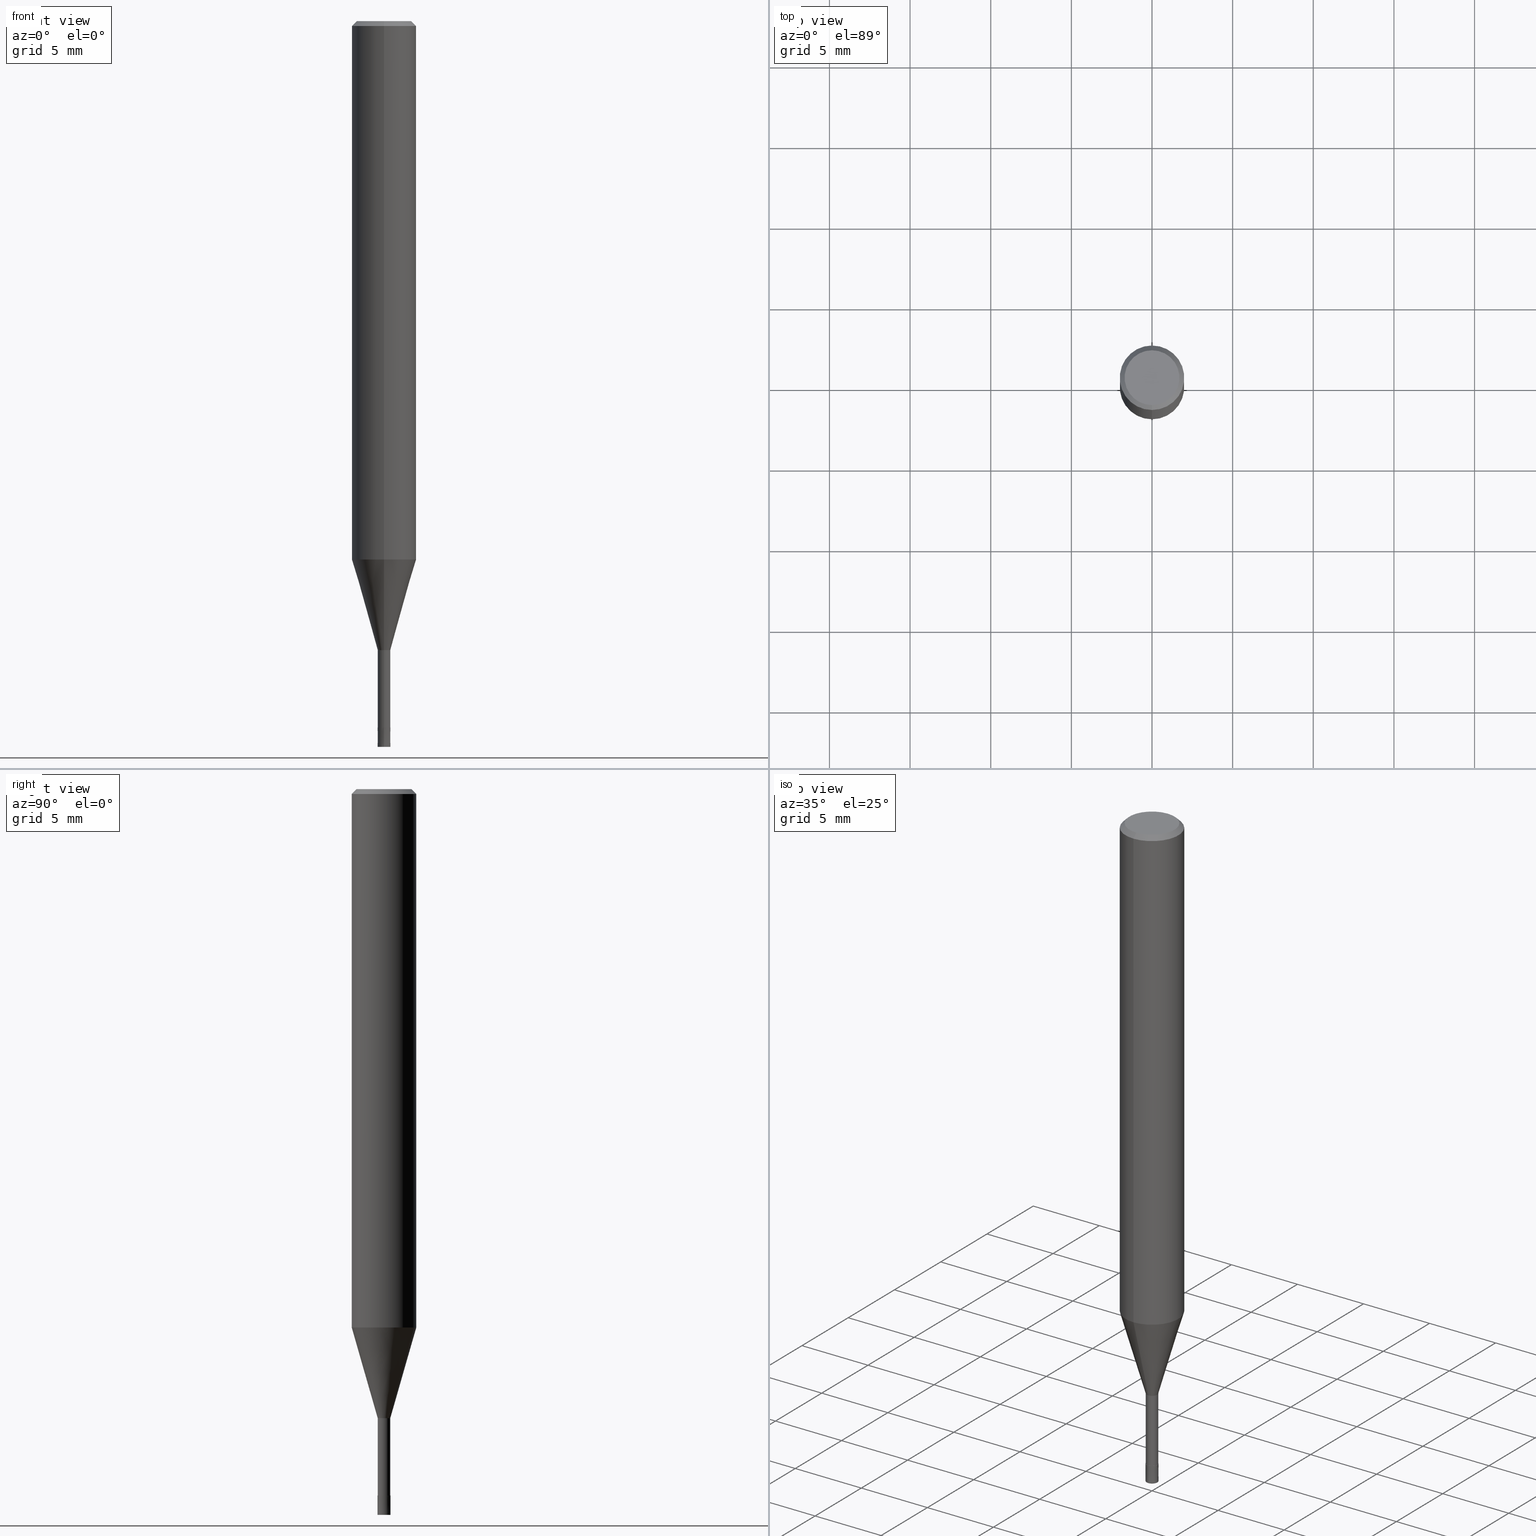
[diagram: canonical four-view strip — front | top / right | iso, engineering-drawing reading convention]
A machine part, canonical four-view strip (front | top / right | iso — engineering-drawing reading convention). The complete STEP part file that produces these views, byte-faithful:
ISO-10303-21;
HEADER;
FILE_DESCRIPTION(('no description'),'unknown implementation level');
FILE_NAME('HLS2008-060-Huellk.stp','  ',('CIMSOURCE GmbH'),('CADClick - KiM GmbH - www.kimweb.de'),'unknown preprocess','ACIS','unknown authorization');
FILE_SCHEMA(('automotive_design'));
ENDSEC;
DATA;
#1=MECHANICAL_DESIGN_GEOMETRIC_PRESENTATION_REPRESENTATION(' ',(#14,#15,#16,#17,#18,#19,#20,#21,#22,#23,#24,#25,#26,#27,#28,#29,#30,#31,#32,#33,#34,#35,#36,#37,#38,#39,#40,#41,#42,#43,#44,#45,#46,#47,#48,#49,#50,#51,#52,#53,#54,#55,#56,#57,#58,#59,#60,#61,#62,#63,#64,#65,#66,#67,#68,#69,#70,#71,#72),#10);
#2=PRODUCT_DEFINITION_CONTEXT('',#73,'design');
#3=APPLICATION_PROTOCOL_DEFINITION('INTERNATIONAL STANDARD','automotive_design',1994,#73);
#4=PRODUCT_CATEGORY_RELATIONSHIP('NONE','NONE',#74,#75);
#5=SHAPE_DEFINITION_REPRESENTATION(#76,#77);
#6=PRODUCT_DEFINITION_CONTEXT('',#78,'design');
#7=APPLICATION_PROTOCOL_DEFINITION('INTERNATIONAL STANDARD','automotive_design',1994,#78);
#8=PRODUCT_CATEGORY_RELATIONSHIP('NONE','NONE',#79,#80);
#9=SHAPE_DEFINITION_REPRESENTATION(#81,#82);
#10= (GEOMETRIC_REPRESENTATION_CONTEXT(3)GLOBAL_UNCERTAINTY_ASSIGNED_CONTEXT((#85))GLOBAL_UNIT_ASSIGNED_CONTEXT((#87,#88,#89))REPRESENTATION_CONTEXT('NONE','WORKSPACE'));
#14=STYLED_ITEM('',(#91),#92);
#15=STYLED_ITEM('',(#93),#94);
#16=STYLED_ITEM('',(#95),#96);
#17=STYLED_ITEM('',(#97),#98);
#18=STYLED_ITEM('',(#99),#100);
#19=STYLED_ITEM('',(#101),#102);
#20=STYLED_ITEM('',(#103),#104);
#21=STYLED_ITEM('',(#105),#106);
#22=STYLED_ITEM('',(#107),#108);
#23=STYLED_ITEM('',(#109),#110);
#24=STYLED_ITEM('',(#111),#112);
#25=STYLED_ITEM('',(#113),#114);
#26=STYLED_ITEM('',(#115),#116);
#27=STYLED_ITEM('',(#117),#118);
#28=STYLED_ITEM('',(#119),#120);
#29=STYLED_ITEM('',(#121),#122);
#30=STYLED_ITEM('',(#123),#124);
#31=STYLED_ITEM('',(#125),#126);
#32=STYLED_ITEM('',(#127),#128);
#33=STYLED_ITEM('',(#129),#130);
#34=STYLED_ITEM('',(#131),#132);
#35=STYLED_ITEM('',(#133),#134);
#36=STYLED_ITEM('',(#135),#136);
#37=STYLED_ITEM('',(#137),#138);
#38=STYLED_ITEM('',(#139),#140);
#39=STYLED_ITEM('',(#141),#142);
#40=STYLED_ITEM('',(#143),#144);
#41=STYLED_ITEM('',(#145),#146);
#42=STYLED_ITEM('',(#147),#148);
#43=STYLED_ITEM('',(#149),#150);
#44=STYLED_ITEM('',(#151),#152);
#45=STYLED_ITEM('',(#153),#154);
#46=STYLED_ITEM('',(#155),#156);
#47=STYLED_ITEM('',(#157),#158);
#48=STYLED_ITEM('',(#159),#160);
#49=STYLED_ITEM('',(#161),#162);
#50=STYLED_ITEM('',(#163),#164);
#51=STYLED_ITEM('',(#165),#166);
#52=STYLED_ITEM('',(#167),#168);
#53=STYLED_ITEM('',(#169),#170);
#54=STYLED_ITEM('',(#171),#172);
#55=STYLED_ITEM('',(#173),#174);
#56=STYLED_ITEM('',(#175),#176);
#57=STYLED_ITEM('',(#177),#178);
#58=STYLED_ITEM('',(#179),#180);
#59=STYLED_ITEM('',(#181),#182);
#60=STYLED_ITEM('',(#183),#184);
#61=STYLED_ITEM('',(#185),#186);
#62=STYLED_ITEM('',(#187),#188);
#63=STYLED_ITEM('',(#189),#190);
#64=STYLED_ITEM('',(#191),#192);
#65=STYLED_ITEM('',(#193),#194);
#66=STYLED_ITEM('',(#195),#196);
#67=STYLED_ITEM('',(#197),#198);
#68=STYLED_ITEM('',(#199),#200);
#69=STYLED_ITEM('',(#201),#202);
#70=STYLED_ITEM('',(#203),#204);
#71=STYLED_ITEM('',(#205),#206);
#72=STYLED_ITEM('',(#207),#208);
#73=APPLICATION_CONTEXT(' ');
#74=PRODUCT_CATEGORY('part','NONE');
#75=PRODUCT_RELATED_PRODUCT_CATEGORY('detail',' ',(#209));
#76=PRODUCT_DEFINITION_SHAPE('NONE','NONE',#210);
#77=ADVANCED_BREP_SHAPE_REPRESENTATION('1',(#118,#211),#10);
#78=APPLICATION_CONTEXT(' ');
#79=PRODUCT_CATEGORY('part','NONE');
#80=PRODUCT_RELATED_PRODUCT_CATEGORY('detail',' ',(#212));
#81=PRODUCT_DEFINITION_SHAPE('NONE','NONE',#213);
#82=ADVANCED_BREP_SHAPE_REPRESENTATION('2',(#132,#214),#10);
#85=UNCERTAINTY_MEASURE_WITH_UNIT(LENGTH_MEASURE(1.0E-006),#87,'','');
#87= (CONVERSION_BASED_UNIT('MILLIMETRE',#217)LENGTH_UNIT()NAMED_UNIT(#220));
#88= (NAMED_UNIT(#222)PLANE_ANGLE_UNIT()SI_UNIT($,.RADIAN.));
#89= (NAMED_UNIT(#222)SOLID_ANGLE_UNIT()SI_UNIT($,.STERADIAN.));
#91=PRESENTATION_STYLE_ASSIGNMENT((#228));
#92=EDGE_CURVE('',#180,#204,#229,.T.);
#93=PRESENTATION_STYLE_ASSIGNMENT((#230));
#94=ADVANCED_FACE('',(#231),#232,.T.);
#95=PRESENTATION_STYLE_ASSIGNMENT((#233));
#96=EDGE_CURVE('',#176,#168,#234,.T.);
#97=PRESENTATION_STYLE_ASSIGNMENT((#235));
#98=EDGE_CURVE('',#114,#162,#236,.T.);
#99=PRESENTATION_STYLE_ASSIGNMENT((#237));
#100=EDGE_CURVE('',#170,#134,#238,.T.);
#101=PRESENTATION_STYLE_ASSIGNMENT((#239));
#102=VERTEX_POINT('',#240);
#103=PRESENTATION_STYLE_ASSIGNMENT((#241));
#104=ADVANCED_FACE('',(#242),#243,.T.);
#105=PRESENTATION_STYLE_ASSIGNMENT((#244));
#106=VERTEX_POINT('',#245);
#107=PRESENTATION_STYLE_ASSIGNMENT((#246));
#108=EDGE_CURVE('',#180,#134,#247,.T.);
#109=PRESENTATION_STYLE_ASSIGNMENT((#248));
#110=ADVANCED_FACE('',(#249),#250,.T.);
#111=PRESENTATION_STYLE_ASSIGNMENT((#251));
#112=EDGE_CURVE('',#162,#114,#252,.T.);
#113=PRESENTATION_STYLE_ASSIGNMENT((#253));
#114=VERTEX_POINT('',#254);
#115=PRESENTATION_STYLE_ASSIGNMENT((#255));
#116=EDGE_CURVE('',#176,#206,#256,.T.);
#117=PRESENTATION_STYLE_ASSIGNMENT((#257));
#118=MANIFOLD_SOLID_BREP('1',#258);
#119=PRESENTATION_STYLE_ASSIGNMENT((#259));
#120=EDGE_CURVE('',#150,#156,#260,.T.);
#121=PRESENTATION_STYLE_ASSIGNMENT((#261));
#122=ADVANCED_FACE('',(#262),#263,.T.);
#123=PRESENTATION_STYLE_ASSIGNMENT((#264));
#124=EDGE_CURVE('',#156,#150,#265,.T.);
#125=PRESENTATION_STYLE_ASSIGNMENT((#266));
#126=VERTEX_POINT('',#267);
#127=PRESENTATION_STYLE_ASSIGNMENT((#268));
#128=EDGE_CURVE('',#106,#206,#269,.T.);
#129=PRESENTATION_STYLE_ASSIGNMENT((#270));
#130=EDGE_CURVE('',#138,#106,#271,.T.);
#131=PRESENTATION_STYLE_ASSIGNMENT((#272));
#132=MANIFOLD_SOLID_BREP('2',#273);
#133=PRESENTATION_STYLE_ASSIGNMENT((#274));
#134=VERTEX_POINT('',#275);
#135=PRESENTATION_STYLE_ASSIGNMENT((#276));
#136=ADVANCED_FACE('',(#277),#278,.T.);
#137=PRESENTATION_STYLE_ASSIGNMENT((#279));
#138=VERTEX_POINT('',#280);
#139=PRESENTATION_STYLE_ASSIGNMENT((#281));
#140=EDGE_CURVE('',#206,#176,#282,.T.);
#141=PRESENTATION_STYLE_ASSIGNMENT((#283));
#142=EDGE_CURVE('',#138,#102,#284,.T.);
#143=PRESENTATION_STYLE_ASSIGNMENT((#285));
#144=ADVANCED_FACE('',(#286),#287,.T.);
#145=PRESENTATION_STYLE_ASSIGNMENT((#288));
#146=ADVANCED_FACE('',(#289),#290,.T.);
#147=PRESENTATION_STYLE_ASSIGNMENT((#291));
#148=EDGE_CURVE('',#170,#204,#292,.T.);
#149=PRESENTATION_STYLE_ASSIGNMENT((#293));
#150=VERTEX_POINT('',#294);
#151=PRESENTATION_STYLE_ASSIGNMENT((#295));
#152=EDGE_CURVE('',#204,#180,#296,.T.);
#153=PRESENTATION_STYLE_ASSIGNMENT((#297));
#154=EDGE_CURVE('',#168,#102,#298,.T.);
#155=PRESENTATION_STYLE_ASSIGNMENT((#299));
#156=VERTEX_POINT('',#300);
#157=PRESENTATION_STYLE_ASSIGNMENT((#301));
#158=EDGE_CURVE('',#198,#126,#302,.T.);
#159=PRESENTATION_STYLE_ASSIGNMENT((#303));
#160=EDGE_CURVE('',#106,#168,#304,.T.);
#161=PRESENTATION_STYLE_ASSIGNMENT((#305));
#162=VERTEX_POINT('',#306);
#163=PRESENTATION_STYLE_ASSIGNMENT((#307));
#164=EDGE_CURVE('',#150,#198,#308,.T.);
#165=PRESENTATION_STYLE_ASSIGNMENT((#309));
#166=ADVANCED_FACE('',(#310),#311,.T.);
#167=PRESENTATION_STYLE_ASSIGNMENT((#312));
#168=VERTEX_POINT('',#313);
#169=PRESENTATION_STYLE_ASSIGNMENT((#314));
#170=VERTEX_POINT('',#315);
#171=PRESENTATION_STYLE_ASSIGNMENT((#316));
#172=EDGE_CURVE('',#126,#198,#317,.T.);
#173=PRESENTATION_STYLE_ASSIGNMENT((#318));
#174=ADVANCED_FACE('',(#319),#320,.T.);
#175=PRESENTATION_STYLE_ASSIGNMENT((#321));
#176=VERTEX_POINT('',#322);
#177=PRESENTATION_STYLE_ASSIGNMENT((#323));
#178=EDGE_CURVE('',#198,#162,#324,.T.);
#179=PRESENTATION_STYLE_ASSIGNMENT((#325));
#180=VERTEX_POINT('',#326);
#181=PRESENTATION_STYLE_ASSIGNMENT((#327));
#182=EDGE_CURVE('',#126,#156,#328,.T.);
#183=PRESENTATION_STYLE_ASSIGNMENT((#329));
#184=ADVANCED_FACE('',(#330),#331,.T.);
#185=PRESENTATION_STYLE_ASSIGNMENT((#332));
#186=ADVANCED_FACE('',(#333,#334),#335,.T.);
#187=PRESENTATION_STYLE_ASSIGNMENT((#336));
#188=ADVANCED_FACE('',(#337),#338,.T.);
#189=PRESENTATION_STYLE_ASSIGNMENT((#339));
#190=ADVANCED_FACE('',(#340),#341,.T.);
#191=PRESENTATION_STYLE_ASSIGNMENT((#342));
#192=ADVANCED_FACE('',(#343),#344,.T.);
#193=PRESENTATION_STYLE_ASSIGNMENT((#345));
#194=ADVANCED_FACE('',(#346),#347,.T.);
#195=PRESENTATION_STYLE_ASSIGNMENT((#348));
#196=EDGE_CURVE('',#102,#138,#349,.T.);
#197=PRESENTATION_STYLE_ASSIGNMENT((#350));
#198=VERTEX_POINT('',#351);
#199=PRESENTATION_STYLE_ASSIGNMENT((#352));
#200=EDGE_CURVE('',#134,#170,#353,.T.);
#201=PRESENTATION_STYLE_ASSIGNMENT((#354));
#202=EDGE_CURVE('',#114,#126,#355,.T.);
#203=PRESENTATION_STYLE_ASSIGNMENT((#356));
#204=VERTEX_POINT('',#357);
#205=PRESENTATION_STYLE_ASSIGNMENT((#358));
#206=VERTEX_POINT('',#359);
#207=PRESENTATION_STYLE_ASSIGNMENT((#360));
#208=EDGE_CURVE('',#168,#106,#361,.T.);
#209=PRODUCT('1','1','PART-1-DESC',(#362));
#210=PRODUCT_DEFINITION('NONE','NONE',#363,#2);
#211=AXIS2_PLACEMENT_3D('',#364,#365,#366);
#212=PRODUCT('2','2','PART-2-DESC',(#367));
#213=PRODUCT_DEFINITION('NONE','NONE',#368,#6);
#214=AXIS2_PLACEMENT_3D('',#369,#370,#371);
#217=LENGTH_MEASURE_WITH_UNIT(LENGTH_MEASURE(1.0),#372);
#220=DIMENSIONAL_EXPONENTS(1.0,0.0,0.0,0.0,0.0,0.0,0.0);
#222=DIMENSIONAL_EXPONENTS(0.0,0.0,0.0,0.0,0.0,0.0,0.0);
#228=CURVE_STYLE('',#373,POSITIVE_LENGTH_MEASURE(1.0E-006),#374);
#229=CIRCLE('',#375,0.3999);
#230=SURFACE_STYLE_USAGE(.BOTH.,#376);
#231=FACE_OUTER_BOUND('',#377,.T.);
#232=PLANE('',#378);
#233=CURVE_STYLE('',#379,POSITIVE_LENGTH_MEASURE(1.0E-006),#380);
#234=LINE('',#381,#382);
#235=CURVE_STYLE('',#383,POSITIVE_LENGTH_MEASURE(1.0E-006),#384);
#236=CIRCLE('',#385,1.7);
#237=CURVE_STYLE('',#386,POSITIVE_LENGTH_MEASURE(1.0E-006),#387);
#238=CIRCLE('',#388,0.4);
#239=POINT_STYLE(' ',#389,POSITIVE_LENGTH_MEASURE(1.0E-006),#390);
#240=CARTESIAN_POINT('',(0.0,0.38995,-43.8));
#241=SURFACE_STYLE_USAGE(.BOTH.,#391);
#242=FACE_OUTER_BOUND('',#392,.T.);
#243=PLANE('',#393);
#244=POINT_STYLE(' ',#394,POSITIVE_LENGTH_MEASURE(1.0E-006),#395);
#245=CARTESIAN_POINT('',(4.77535247673036E-017,-0.38995,-39.0));
#246=CURVE_STYLE('',#396,POSITIVE_LENGTH_MEASURE(1.0E-006),#397);
#247=LINE('',#398,#399);
#248=SURFACE_STYLE_USAGE(.BOTH.,#400);
#249=FACE_OUTER_BOUND('',#401,.T.);
#250=CONICAL_SURFACE('',#402,1.19495,0.279240281890545);
#251=CURVE_STYLE('',#403,POSITIVE_LENGTH_MEASURE(1.0E-006),#404);
#252=CIRCLE('',#405,1.7);
#253=POINT_STYLE(' ',#406,POSITIVE_LENGTH_MEASURE(1.0E-006),#407);
#254=CARTESIAN_POINT('',(0.0,1.7,0.0));
#255=CURVE_STYLE('',#408,POSITIVE_LENGTH_MEASURE(1.0E-006),#409);
#256=CIRCLE('',#410,1.99995);
#257=SURFACE_STYLE_USAGE(.BOTH.,#411);
#258=CLOSED_SHELL('',(#188,#110,#136,#146,#186,#104,#190,#192,#174,#166,#194));
#259=CURVE_STYLE('',#412,POSITIVE_LENGTH_MEASURE(1.0E-006),#413);
#260=CIRCLE('',#414,2.0);
#261=SURFACE_STYLE_USAGE(.BOTH.,#415);
#262=FACE_OUTER_BOUND('',#416,.T.);
#263=CONICAL_SURFACE('',#417,0.39995,8.33333331404692E-005);
#264=CURVE_STYLE('',#418,POSITIVE_LENGTH_MEASURE(1.0E-006),#419);
#265=CIRCLE('',#420,2.0);
#266=POINT_STYLE(' ',#421,POSITIVE_LENGTH_MEASURE(1.0E-006),#422);
#267=CARTESIAN_POINT('',(0.0,2.0,-0.299999999999997));
#268=CURVE_STYLE('',#423,POSITIVE_LENGTH_MEASURE(1.0E-006),#424);
#269=LINE('',#425,#426);
#270=CURVE_STYLE('',#427,POSITIVE_LENGTH_MEASURE(1.0E-006),#428);
#271=LINE('',#429,#430);
#272=SURFACE_STYLE_USAGE(.BOTH.,#431);
#273=CLOSED_SHELL('',(#144,#94,#122,#184));
#274=POINT_STYLE(' ',#432,POSITIVE_LENGTH_MEASURE(1.0E-006),#433);
#275=CARTESIAN_POINT('',(0.0,0.4,-45.0));
#276=SURFACE_STYLE_USAGE(.BOTH.,#434);
#277=FACE_OUTER_BOUND('',#435,.T.);
#278=CYLINDRICAL_SURFACE('',#436,2.0);
#279=POINT_STYLE(' ',#437,POSITIVE_LENGTH_MEASURE(1.0E-006),#438);
#280=CARTESIAN_POINT('',(4.77535247673036E-017,-0.38995,-43.8));
#281=CURVE_STYLE('',#439,POSITIVE_LENGTH_MEASURE(1.0E-006),#440);
#282=CIRCLE('',#441,1.99995);
#283=CURVE_STYLE('',#442,POSITIVE_LENGTH_MEASURE(1.0E-006),#443);
#284=CIRCLE('',#444,0.38995);
#285=SURFACE_STYLE_USAGE(.BOTH.,#445);
#286=FACE_OUTER_BOUND('',#446,.T.);
#287=CONICAL_SURFACE('',#447,0.39995,8.33333331404692E-005);
#288=SURFACE_STYLE_USAGE(.BOTH.,#448);
#289=FACE_OUTER_BOUND('',#449,.T.);
#290=CONICAL_SURFACE('',#450,1.85,0.785398163397453);
#291=CURVE_STYLE('',#451,POSITIVE_LENGTH_MEASURE(1.0E-006),#452);
#292=LINE('',#453,#454);
#293=POINT_STYLE(' ',#455,POSITIVE_LENGTH_MEASURE(1.0E-006),#456);
#294=CARTESIAN_POINT('',(2.44921270764475E-016,-2.0,-33.385));
#295=CURVE_STYLE('',#457,POSITIVE_LENGTH_MEASURE(1.0E-006),#458);
#296=CIRCLE('',#459,0.3999);
#297=CURVE_STYLE('',#460,POSITIVE_LENGTH_MEASURE(1.0E-006),#461);
#298=LINE('',#462,#463);
#299=POINT_STYLE(' ',#464,POSITIVE_LENGTH_MEASURE(1.0E-006),#465);
#300=CARTESIAN_POINT('',(0.0,2.0,-33.385));
#301=CURVE_STYLE('',#466,POSITIVE_LENGTH_MEASURE(1.0E-006),#467);
#302=CIRCLE('',#468,2.0);
#303=CURVE_STYLE('',#469,POSITIVE_LENGTH_MEASURE(1.0E-006),#470);
#304=CIRCLE('',#471,0.38995);
#305=POINT_STYLE(' ',#472,POSITIVE_LENGTH_MEASURE(1.0E-006),#473);
#306=CARTESIAN_POINT('',(2.08183080149804E-016,-1.7,0.0));
#307=CURVE_STYLE('',#474,POSITIVE_LENGTH_MEASURE(1.0E-006),#475);
#308=LINE('',#476,#477);
#309=SURFACE_STYLE_USAGE(.BOTH.,#478);
#310=FACE_OUTER_BOUND('',#479,.T.);
#311=CYLINDRICAL_SURFACE('',#480,0.38995);
#312=POINT_STYLE(' ',#481,POSITIVE_LENGTH_MEASURE(1.0E-006),#482);
#313=CARTESIAN_POINT('',(0.0,0.38995,-39.0));
#314=POINT_STYLE(' ',#483,POSITIVE_LENGTH_MEASURE(1.0E-006),#484);
#315=CARTESIAN_POINT('',(4.89842541528951E-017,-0.4,-45.0));
#316=CURVE_STYLE('',#485,POSITIVE_LENGTH_MEASURE(1.0E-006),#486);
#317=CIRCLE('',#487,2.0);
#318=SURFACE_STYLE_USAGE(.BOTH.,#488);
#319=FACE_OUTER_BOUND('',#489,.T.);
#320=CONICAL_SURFACE('',#490,1.19495,0.279240281890545);
#321=POINT_STYLE(' ',#491,POSITIVE_LENGTH_MEASURE(1.0E-006),#492);
#322=CARTESIAN_POINT('',(0.0,1.99995,-33.385));
#323=CURVE_STYLE('',#493,POSITIVE_LENGTH_MEASURE(1.0E-006),#494);
#324=LINE('',#495,#496);
#325=POINT_STYLE(' ',#497,POSITIVE_LENGTH_MEASURE(1.0E-006),#498);
#326=CARTESIAN_POINT('',(0.0,0.3999,-43.8));
#327=CURVE_STYLE('',#499,POSITIVE_LENGTH_MEASURE(1.0E-006),#500);
#328=LINE('',#501,#502);
#329=SURFACE_STYLE_USAGE(.BOTH.,#503);
#330=FACE_OUTER_BOUND('',#504,.T.);
#331=PLANE('',#505);
#332=SURFACE_STYLE_USAGE(.BOTH.,#506);
#333=FACE_OUTER_BOUND('',#507,.T.);
#334=FACE_BOUND('',#508,.T.);
#335=PLANE('',#509);
#336=SURFACE_STYLE_USAGE(.BOTH.,#510);
#337=FACE_OUTER_BOUND('',#511,.T.);
#338=CYLINDRICAL_SURFACE('',#512,0.38995);
#339=SURFACE_STYLE_USAGE(.BOTH.,#513);
#340=FACE_OUTER_BOUND('',#514,.T.);
#341=CONICAL_SURFACE('',#515,1.85,0.785398163397453);
#342=SURFACE_STYLE_USAGE(.BOTH.,#516);
#343=FACE_OUTER_BOUND('',#517,.T.);
#344=CYLINDRICAL_SURFACE('',#518,2.0);
#345=SURFACE_STYLE_USAGE(.BOTH.,#519);
#346=FACE_OUTER_BOUND('',#520,.T.);
#347=PLANE('',#521);
#348=CURVE_STYLE('',#522,POSITIVE_LENGTH_MEASURE(1.0E-006),#523);
#349=CIRCLE('',#524,0.38995);
#350=POINT_STYLE(' ',#525,POSITIVE_LENGTH_MEASURE(1.0E-006),#526);
#351=CARTESIAN_POINT('',(2.44921270764475E-016,-2.0,-0.299999999999997));
#352=CURVE_STYLE('',#527,POSITIVE_LENGTH_MEASURE(1.0E-006),#528);
#353=CIRCLE('',#529,0.4);
#354=CURVE_STYLE('',#530,POSITIVE_LENGTH_MEASURE(1.0E-006),#531);
#355=LINE('',#532,#533);
#356=POINT_STYLE(' ',#534,POSITIVE_LENGTH_MEASURE(1.0E-006),#535);
#357=CARTESIAN_POINT('',(4.89720080893569E-017,-0.3999,-43.8));
#358=POINT_STYLE(' ',#536,POSITIVE_LENGTH_MEASURE(1.0E-006),#537);
#359=CARTESIAN_POINT('',(2.44915147732706E-016,-1.99995,-33.385));
#360=CURVE_STYLE('',#538,POSITIVE_LENGTH_MEASURE(1.0E-006),#539);
#361=CIRCLE('',#540,0.38995);
#362=PRODUCT_CONTEXT('',#73,'mechanical');
#363=PRODUCT_DEFINITION_FORMATION_WITH_SPECIFIED_SOURCE(' ','NONE',#209,.NOT_KNOWN.);
#364=CARTESIAN_POINT('',(0.0,0.0,0.0));
#365=DIRECTION('',(0.0,0.0,1.0));
#366=DIRECTION('',(1.0,0.0,0.0));
#367=PRODUCT_CONTEXT('',#78,'mechanical');
#368=PRODUCT_DEFINITION_FORMATION_WITH_SPECIFIED_SOURCE(' ','NONE',#212,.NOT_KNOWN.);
#369=CARTESIAN_POINT('',(0.0,0.0,0.0));
#370=DIRECTION('',(0.0,0.0,1.0));
#371=DIRECTION('',(1.0,0.0,0.0));
#372= (NAMED_UNIT(#220)LENGTH_UNIT()SI_UNIT(.MILLI.,.METRE.));
#373=DRAUGHTING_PRE_DEFINED_CURVE_FONT('continuous');
#374=COLOUR_RGB('',0.800000011920929,0.800000011920929,0.800000011920929);
#375=AXIS2_PLACEMENT_3D('',#542,#543,#544);
#376=SURFACE_SIDE_STYLE('',(#545));
#377=EDGE_LOOP('',(#546,#547));
#378=AXIS2_PLACEMENT_3D('',#548,#549,#550);
#379=DRAUGHTING_PRE_DEFINED_CURVE_FONT('continuous');
#380=COLOUR_RGB('',0.498039215803146,0.498039215803146,0.498039215803146);
#381=CARTESIAN_POINT('',(-1.46334336250005E-016,1.19495,-36.1925));
#382=VECTOR('',#551,1.0);
#383=DRAUGHTING_PRE_DEFINED_CURVE_FONT('continuous');
#384=COLOUR_RGB('',0.498039215803146,0.498039215803146,0.498039215803146);
#385=AXIS2_PLACEMENT_3D('',#552,#553,#554);
#386=DRAUGHTING_PRE_DEFINED_CURVE_FONT('continuous');
#387=COLOUR_RGB('',0.800000011920929,0.800000011920929,0.800000011920929);
#388=AXIS2_PLACEMENT_3D('',#555,#556,#557);
#389=PRE_DEFINED_MARKER('');
#390=COLOUR_RGB('',0.498039215803146,0.498039215803146,0.498039215803146);
#391=SURFACE_SIDE_STYLE('',(#558));
#392=EDGE_LOOP('',(#559,#560));
#393=AXIS2_PLACEMENT_3D('',#561,#562,#563);
#394=PRE_DEFINED_MARKER('');
#395=COLOUR_RGB('',0.498039215803146,0.498039215803146,0.498039215803146);
#396=DRAUGHTING_PRE_DEFINED_CURVE_FONT('continuous');
#397=COLOUR_RGB('',0.800000011920929,0.800000011920929,0.800000011920929);
#398=CARTESIAN_POINT('',(-4.8978131121126E-017,0.39995,-44.4));
#399=VECTOR('',#564,1.0);
#400=SURFACE_SIDE_STYLE('',(#565));
#401=EDGE_LOOP('',(#566,#567,#568,#569));
#402=AXIS2_PLACEMENT_3D('',#570,#571,#572);
#403=DRAUGHTING_PRE_DEFINED_CURVE_FONT('continuous');
#404=COLOUR_RGB('',0.498039215803146,0.498039215803146,0.498039215803146);
#405=AXIS2_PLACEMENT_3D('',#573,#574,#575);
#406=PRE_DEFINED_MARKER('');
#407=COLOUR_RGB('',0.498039215803146,0.498039215803146,0.498039215803146);
#408=DRAUGHTING_PRE_DEFINED_CURVE_FONT('continuous');
#409=COLOUR_RGB('',0.498039215803146,0.498039215803146,0.498039215803146);
#410=AXIS2_PLACEMENT_3D('',#576,#577,#578);
#411=SURFACE_SIDE_STYLE('',(#579));
#412=DRAUGHTING_PRE_DEFINED_CURVE_FONT('continuous');
#413=COLOUR_RGB('',0.498039215803146,0.498039215803146,0.498039215803146);
#414=AXIS2_PLACEMENT_3D('',#580,#581,#582);
#415=SURFACE_SIDE_STYLE('',(#583));
#416=EDGE_LOOP('',(#584,#585,#586,#587));
#417=AXIS2_PLACEMENT_3D('',#588,#589,#590);
#418=DRAUGHTING_PRE_DEFINED_CURVE_FONT('continuous');
#419=COLOUR_RGB('',0.498039215803146,0.498039215803146,0.498039215803146);
#420=AXIS2_PLACEMENT_3D('',#591,#592,#593);
#421=PRE_DEFINED_MARKER('');
#422=COLOUR_RGB('',0.498039215803146,0.498039215803146,0.498039215803146);
#423=DRAUGHTING_PRE_DEFINED_CURVE_FONT('continuous');
#424=COLOUR_RGB('',0.498039215803146,0.498039215803146,0.498039215803146);
#425=CARTESIAN_POINT('',(1.46334336250005E-016,-1.19495,-36.1925));
#426=VECTOR('',#594,1.0);
#427=DRAUGHTING_PRE_DEFINED_CURVE_FONT('continuous');
#428=COLOUR_RGB('',0.498039215803146,0.498039215803146,0.498039215803146);
#429=CARTESIAN_POINT('',(4.77535247673036E-017,-0.38995,-41.4));
#430=VECTOR('',#595,1.0);
#431=SURFACE_SIDE_STYLE('',(#596));
#432=PRE_DEFINED_MARKER('');
#433=COLOUR_RGB('',0.800000011920929,0.800000011920929,0.800000011920929);
#434=SURFACE_SIDE_STYLE('',(#597));
#435=EDGE_LOOP('',(#598,#599,#600,#601));
#436=AXIS2_PLACEMENT_3D('',#602,#603,#604);
#437=PRE_DEFINED_MARKER('');
#438=COLOUR_RGB('',0.498039215803146,0.498039215803146,0.498039215803146);
#439=DRAUGHTING_PRE_DEFINED_CURVE_FONT('continuous');
#440=COLOUR_RGB('',0.498039215803146,0.498039215803146,0.498039215803146);
#441=AXIS2_PLACEMENT_3D('',#605,#606,#607);
#442=DRAUGHTING_PRE_DEFINED_CURVE_FONT('continuous');
#443=COLOUR_RGB('',0.498039215803146,0.498039215803146,0.498039215803146);
#444=AXIS2_PLACEMENT_3D('',#608,#609,#610);
#445=SURFACE_SIDE_STYLE('',(#611));
#446=EDGE_LOOP('',(#612,#613,#614,#615));
#447=AXIS2_PLACEMENT_3D('',#616,#617,#618);
#448=SURFACE_SIDE_STYLE('',(#619));
#449=EDGE_LOOP('',(#620,#621,#622,#623));
#450=AXIS2_PLACEMENT_3D('',#624,#625,#626);
#451=DRAUGHTING_PRE_DEFINED_CURVE_FONT('continuous');
#452=COLOUR_RGB('',0.800000011920929,0.800000011920929,0.800000011920929);
#453=CARTESIAN_POINT('',(4.8978131121126E-017,-0.39995,-44.4));
#454=VECTOR('',#627,1.0);
#455=PRE_DEFINED_MARKER('');
#456=COLOUR_RGB('',0.498039215803146,0.498039215803146,0.498039215803146);
#457=DRAUGHTING_PRE_DEFINED_CURVE_FONT('continuous');
#458=COLOUR_RGB('',0.800000011920929,0.800000011920929,0.800000011920929);
#459=AXIS2_PLACEMENT_3D('',#628,#629,#630);
#460=DRAUGHTING_PRE_DEFINED_CURVE_FONT('continuous');
#461=COLOUR_RGB('',0.498039215803146,0.498039215803146,0.498039215803146);
#462=CARTESIAN_POINT('',(-4.77535247673036E-017,0.38995,-41.4));
#463=VECTOR('',#631,1.0);
#464=PRE_DEFINED_MARKER('');
#465=COLOUR_RGB('',0.498039215803146,0.498039215803146,0.498039215803146);
#466=DRAUGHTING_PRE_DEFINED_CURVE_FONT('continuous');
#467=COLOUR_RGB('',0.498039215803146,0.498039215803146,0.498039215803146);
#468=AXIS2_PLACEMENT_3D('',#632,#633,#634);
#469=DRAUGHTING_PRE_DEFINED_CURVE_FONT('continuous');
#470=COLOUR_RGB('',0.498039215803146,0.498039215803146,0.498039215803146);
#471=AXIS2_PLACEMENT_3D('',#635,#636,#637);
#472=PRE_DEFINED_MARKER('');
#473=COLOUR_RGB('',0.498039215803146,0.498039215803146,0.498039215803146);
#474=DRAUGHTING_PRE_DEFINED_CURVE_FONT('continuous');
#475=COLOUR_RGB('',0.498039215803146,0.498039215803146,0.498039215803146);
#476=CARTESIAN_POINT('',(2.44921270764475E-016,-2.0,-16.8425));
#477=VECTOR('',#638,1.0);
#478=SURFACE_SIDE_STYLE('',(#639));
#479=EDGE_LOOP('',(#640,#641,#642,#643));
#480=AXIS2_PLACEMENT_3D('',#644,#645,#646);
#481=PRE_DEFINED_MARKER('');
#482=COLOUR_RGB('',0.498039215803146,0.498039215803146,0.498039215803146);
#483=PRE_DEFINED_MARKER('');
#484=COLOUR_RGB('',0.800000011920929,0.800000011920929,0.800000011920929);
#485=DRAUGHTING_PRE_DEFINED_CURVE_FONT('continuous');
#486=COLOUR_RGB('',0.498039215803146,0.498039215803146,0.498039215803146);
#487=AXIS2_PLACEMENT_3D('',#647,#648,#649);
#488=SURFACE_SIDE_STYLE('',(#650));
#489=EDGE_LOOP('',(#651,#652,#653,#654));
#490=AXIS2_PLACEMENT_3D('',#655,#656,#657);
#491=PRE_DEFINED_MARKER('');
#492=COLOUR_RGB('',0.498039215803146,0.498039215803146,0.498039215803146);
#493=DRAUGHTING_PRE_DEFINED_CURVE_FONT('continuous');
#494=COLOUR_RGB('',0.498039215803146,0.498039215803146,0.498039215803146);
#495=CARTESIAN_POINT('',(2.2655217545714E-016,-1.85,-0.149999999999999));
#496=VECTOR('',#658,1.0);
#497=PRE_DEFINED_MARKER('');
#498=COLOUR_RGB('',0.800000011920929,0.800000011920929,0.800000011920929);
#499=DRAUGHTING_PRE_DEFINED_CURVE_FONT('continuous');
#500=COLOUR_RGB('',0.498039215803146,0.498039215803146,0.498039215803146);
#501=CARTESIAN_POINT('',(-2.44921270764475E-016,2.0,-16.8425));
#502=VECTOR('',#659,1.0);
#503=SURFACE_SIDE_STYLE('',(#660));
#504=EDGE_LOOP('',(#661,#662));
#505=AXIS2_PLACEMENT_3D('',#663,#664,#665);
#506=SURFACE_SIDE_STYLE('',(#666));
#507=EDGE_LOOP('',(#667,#668));
#508=EDGE_LOOP('',(#669,#670));
#509=AXIS2_PLACEMENT_3D('',#671,#672,#673);
#510=SURFACE_SIDE_STYLE('',(#674));
#511=EDGE_LOOP('',(#675,#676,#677,#678));
#512=AXIS2_PLACEMENT_3D('',#679,#680,#681);
#513=SURFACE_SIDE_STYLE('',(#682));
#514=EDGE_LOOP('',(#683,#684,#685,#686));
#515=AXIS2_PLACEMENT_3D('',#687,#688,#689);
#516=SURFACE_SIDE_STYLE('',(#690));
#517=EDGE_LOOP('',(#691,#692,#693,#694));
#518=AXIS2_PLACEMENT_3D('',#695,#696,#697);
#519=SURFACE_SIDE_STYLE('',(#698));
#520=EDGE_LOOP('',(#699,#700));
#521=AXIS2_PLACEMENT_3D('',#701,#702,#703);
#522=DRAUGHTING_PRE_DEFINED_CURVE_FONT('continuous');
#523=COLOUR_RGB('',0.498039215803146,0.498039215803146,0.498039215803146);
#524=AXIS2_PLACEMENT_3D('',#704,#705,#706);
#525=PRE_DEFINED_MARKER('');
#526=COLOUR_RGB('',0.498039215803146,0.498039215803146,0.498039215803146);
#527=DRAUGHTING_PRE_DEFINED_CURVE_FONT('continuous');
#528=COLOUR_RGB('',0.800000011920929,0.800000011920929,0.800000011920929);
#529=AXIS2_PLACEMENT_3D('',#707,#708,#709);
#530=DRAUGHTING_PRE_DEFINED_CURVE_FONT('continuous');
#531=COLOUR_RGB('',0.498039215803146,0.498039215803146,0.498039215803146);
#532=CARTESIAN_POINT('',(-2.2655217545714E-016,1.85,-0.149999999999999));
#533=VECTOR('',#710,1.0);
#534=PRE_DEFINED_MARKER('');
#535=COLOUR_RGB('',0.800000011920929,0.800000011920929,0.800000011920929);
#536=PRE_DEFINED_MARKER('');
#537=COLOUR_RGB('',0.498039215803146,0.498039215803146,0.498039215803146);
#538=DRAUGHTING_PRE_DEFINED_CURVE_FONT('continuous');
#539=COLOUR_RGB('',0.498039215803146,0.498039215803146,0.498039215803146);
#540=AXIS2_PLACEMENT_3D('',#711,#712,#713);
#542=CARTESIAN_POINT('',(0.0,0.0,-43.8));
#543=DIRECTION('',(0.0,0.0,-1.0));
#544=DIRECTION('',(0.0,1.0,0.0));
#545=SURFACE_STYLE_FILL_AREA(#714);
#546=ORIENTED_EDGE('',*,*,#92,.F.);
#547=ORIENTED_EDGE('',*,*,#152,.F.);
#548=CARTESIAN_POINT('',(0.0,0.19995,-43.8));
#549=DIRECTION('',(-0.0,0.0,1.0));
#550=DIRECTION('',(0.0,-1.0,0.0));
#551=DIRECTION('',(3.37532662235176E-017,-0.275625437661361,-0.961265113334497));
#552=CARTESIAN_POINT('',(0.0,0.0,0.0));
#553=DIRECTION('',(0.0,0.0,-1.0));
#554=DIRECTION('',(0.0,1.0,0.0));
#555=CARTESIAN_POINT('',(0.0,0.0,-45.0));
#556=DIRECTION('',(0.0,0.0,-1.0));
#557=DIRECTION('',(0.0,1.0,0.0));
#558=SURFACE_STYLE_FILL_AREA(#715);
#559=ORIENTED_EDGE('',*,*,#98,.F.);
#560=ORIENTED_EDGE('',*,*,#112,.F.);
#561=CARTESIAN_POINT('',(0.0,0.85,0.0));
#562=DIRECTION('',(-0.0,0.0,1.0));
#563=DIRECTION('',(0.0,-1.0,0.0));
#564=DIRECTION('',(-1.02050529130901E-020,8.33333330440186E-005,-0.999999996527778));
#565=SURFACE_STYLE_FILL_AREA(#716);
#566=ORIENTED_EDGE('',*,*,#96,.F.);
#567=ORIENTED_EDGE('',*,*,#116,.T.);
#568=ORIENTED_EDGE('',*,*,#128,.F.);
#569=ORIENTED_EDGE('',*,*,#208,.F.);
#570=CARTESIAN_POINT('',(0.0,0.0,-36.1925));
#571=DIRECTION('',(-0.0,-0.0,1.0));
#572=DIRECTION('',(0.0,1.0,0.0));
#573=CARTESIAN_POINT('',(0.0,0.0,0.0));
#574=DIRECTION('',(0.0,0.0,-1.0));
#575=DIRECTION('',(0.0,1.0,0.0));
#576=CARTESIAN_POINT('',(0.0,0.0,-33.385));
#577=DIRECTION('',(0.0,0.0,-1.0));
#578=DIRECTION('',(0.0,1.0,0.0));
#579=SURFACE_STYLE_FILL_AREA(#717);
#580=CARTESIAN_POINT('',(0.0,0.0,-33.385));
#581=DIRECTION('',(0.0,0.0,-1.0));
#582=DIRECTION('',(0.0,1.0,0.0));
#583=SURFACE_STYLE_FILL_AREA(#718);
#584=ORIENTED_EDGE('',*,*,#108,.T.);
#585=ORIENTED_EDGE('',*,*,#100,.F.);
#586=ORIENTED_EDGE('',*,*,#148,.T.);
#587=ORIENTED_EDGE('',*,*,#152,.T.);
#588=CARTESIAN_POINT('',(0.0,0.0,-44.4));
#589=DIRECTION('',(0.0,-0.0,-1.0));
#590=DIRECTION('',(0.0,1.0,0.0));
#591=CARTESIAN_POINT('',(0.0,0.0,-33.385));
#592=DIRECTION('',(0.0,0.0,-1.0));
#593=DIRECTION('',(0.0,1.0,0.0));
#594=DIRECTION('',(3.37532662235176E-017,-0.275625437661361,0.961265113334497));
#595=DIRECTION('',(-0.0,-0.0,1.0));
#596=SURFACE_STYLE_FILL_AREA(#719);
#597=SURFACE_STYLE_FILL_AREA(#720);
#598=ORIENTED_EDGE('',*,*,#182,.F.);
#599=ORIENTED_EDGE('',*,*,#172,.T.);
#600=ORIENTED_EDGE('',*,*,#164,.F.);
#601=ORIENTED_EDGE('',*,*,#124,.F.);
#602=CARTESIAN_POINT('',(0.0,0.0,-16.8425));
#603=DIRECTION('',(-0.0,-0.0,1.0));
#604=DIRECTION('',(0.0,1.0,0.0));
#605=CARTESIAN_POINT('',(0.0,0.0,-33.385));
#606=DIRECTION('',(0.0,0.0,-1.0));
#607=DIRECTION('',(0.0,1.0,0.0));
#608=CARTESIAN_POINT('',(0.0,0.0,-43.8));
#609=DIRECTION('',(0.0,0.0,-1.0));
#610=DIRECTION('',(0.0,1.0,0.0));
#611=SURFACE_STYLE_FILL_AREA(#721);
#612=ORIENTED_EDGE('',*,*,#108,.F.);
#613=ORIENTED_EDGE('',*,*,#92,.T.);
#614=ORIENTED_EDGE('',*,*,#148,.F.);
#615=ORIENTED_EDGE('',*,*,#200,.F.);
#616=CARTESIAN_POINT('',(0.0,0.0,-44.4));
#617=DIRECTION('',(0.0,-0.0,-1.0));
#618=DIRECTION('',(0.0,1.0,0.0));
#619=SURFACE_STYLE_FILL_AREA(#722);
#620=ORIENTED_EDGE('',*,*,#202,.F.);
#621=ORIENTED_EDGE('',*,*,#98,.T.);
#622=ORIENTED_EDGE('',*,*,#178,.F.);
#623=ORIENTED_EDGE('',*,*,#172,.F.);
#624=CARTESIAN_POINT('',(0.0,0.0,-0.149999999999999));
#625=DIRECTION('',(0.0,-0.0,-1.0));
#626=DIRECTION('',(0.0,1.0,0.0));
#627=DIRECTION('',(-1.02050529130901E-020,8.33333330440186E-005,0.999999996527778));
#628=CARTESIAN_POINT('',(0.0,0.0,-43.8));
#629=DIRECTION('',(0.0,0.0,-1.0));
#630=DIRECTION('',(0.0,1.0,0.0));
#631=DIRECTION('',(0.0,0.0,-1.0));
#632=CARTESIAN_POINT('',(0.0,0.0,-0.299999999999997));
#633=DIRECTION('',(0.0,0.0,-1.0));
#634=DIRECTION('',(0.0,1.0,0.0));
#635=CARTESIAN_POINT('',(0.0,0.0,-39.0));
#636=DIRECTION('',(0.0,0.0,-1.0));
#637=DIRECTION('',(0.0,1.0,0.0));
#638=DIRECTION('',(-0.0,-0.0,1.0));
#639=SURFACE_STYLE_FILL_AREA(#723);
#640=ORIENTED_EDGE('',*,*,#154,.T.);
#641=ORIENTED_EDGE('',*,*,#142,.F.);
#642=ORIENTED_EDGE('',*,*,#130,.T.);
#643=ORIENTED_EDGE('',*,*,#160,.T.);
#644=CARTESIAN_POINT('',(0.0,0.0,-41.4));
#645=DIRECTION('',(-0.0,-0.0,1.0));
#646=DIRECTION('',(0.0,1.0,0.0));
#647=CARTESIAN_POINT('',(0.0,0.0,-0.299999999999997));
#648=DIRECTION('',(0.0,0.0,-1.0));
#649=DIRECTION('',(0.0,1.0,0.0));
#650=SURFACE_STYLE_FILL_AREA(#724);
#651=ORIENTED_EDGE('',*,*,#96,.T.);
#652=ORIENTED_EDGE('',*,*,#160,.F.);
#653=ORIENTED_EDGE('',*,*,#128,.T.);
#654=ORIENTED_EDGE('',*,*,#140,.T.);
#655=CARTESIAN_POINT('',(0.0,0.0,-36.1925));
#656=DIRECTION('',(-0.0,-0.0,1.0));
#657=DIRECTION('',(0.0,1.0,0.0));
#658=DIRECTION('',(-8.6592745707194E-017,0.707106781186551,0.707106781186544));
#659=DIRECTION('',(0.0,0.0,-1.0));
#660=SURFACE_STYLE_FILL_AREA(#725);
#661=ORIENTED_EDGE('',*,*,#200,.T.);
#662=ORIENTED_EDGE('',*,*,#100,.T.);
#663=CARTESIAN_POINT('',(0.0,0.1975,-45.0));
#664=DIRECTION('',(0.0,0.0,-1.0));
#665=DIRECTION('',(0.0,1.0,0.0));
#666=SURFACE_STYLE_FILL_AREA(#726);
#667=ORIENTED_EDGE('',*,*,#124,.T.);
#668=ORIENTED_EDGE('',*,*,#120,.T.);
#669=ORIENTED_EDGE('',*,*,#116,.F.);
#670=ORIENTED_EDGE('',*,*,#140,.F.);
#671=CARTESIAN_POINT('',(0.0,1.0,-33.385));
#672=DIRECTION('',(0.0,0.0,-1.0));
#673=DIRECTION('',(0.0,1.0,0.0));
#674=SURFACE_STYLE_FILL_AREA(#727);
#675=ORIENTED_EDGE('',*,*,#154,.F.);
#676=ORIENTED_EDGE('',*,*,#208,.T.);
#677=ORIENTED_EDGE('',*,*,#130,.F.);
#678=ORIENTED_EDGE('',*,*,#196,.F.);
#679=CARTESIAN_POINT('',(0.0,0.0,-41.4));
#680=DIRECTION('',(-0.0,-0.0,1.0));
#681=DIRECTION('',(0.0,1.0,0.0));
#682=SURFACE_STYLE_FILL_AREA(#728);
#683=ORIENTED_EDGE('',*,*,#202,.T.);
#684=ORIENTED_EDGE('',*,*,#158,.F.);
#685=ORIENTED_EDGE('',*,*,#178,.T.);
#686=ORIENTED_EDGE('',*,*,#112,.T.);
#687=CARTESIAN_POINT('',(0.0,0.0,-0.149999999999999));
#688=DIRECTION('',(0.0,-0.0,-1.0));
#689=DIRECTION('',(0.0,1.0,0.0));
#690=SURFACE_STYLE_FILL_AREA(#729);
#691=ORIENTED_EDGE('',*,*,#182,.T.);
#692=ORIENTED_EDGE('',*,*,#120,.F.);
#693=ORIENTED_EDGE('',*,*,#164,.T.);
#694=ORIENTED_EDGE('',*,*,#158,.T.);
#695=CARTESIAN_POINT('',(0.0,0.0,-16.8425));
#696=DIRECTION('',(-0.0,-0.0,1.0));
#697=DIRECTION('',(0.0,1.0,0.0));
#698=SURFACE_STYLE_FILL_AREA(#730);
#699=ORIENTED_EDGE('',*,*,#196,.T.);
#700=ORIENTED_EDGE('',*,*,#142,.T.);
#701=CARTESIAN_POINT('',(0.0,0.194975,-43.8));
#702=DIRECTION('',(0.0,0.0,-1.0));
#703=DIRECTION('',(0.0,1.0,0.0));
#704=CARTESIAN_POINT('',(0.0,0.0,-43.8));
#705=DIRECTION('',(0.0,0.0,-1.0));
#706=DIRECTION('',(0.0,1.0,0.0));
#707=CARTESIAN_POINT('',(0.0,0.0,-45.0));
#708=DIRECTION('',(0.0,0.0,-1.0));
#709=DIRECTION('',(0.0,1.0,0.0));
#710=DIRECTION('',(-8.6592745707194E-017,0.707106781186551,-0.707106781186544));
#711=CARTESIAN_POINT('',(0.0,0.0,-39.0));
#712=DIRECTION('',(0.0,0.0,-1.0));
#713=DIRECTION('',(0.0,1.0,0.0));
#714=FILL_AREA_STYLE('',(#731));
#715=FILL_AREA_STYLE('',(#732));
#716=FILL_AREA_STYLE('',(#733));
#717=FILL_AREA_STYLE('',(#734));
#718=FILL_AREA_STYLE('',(#735));
#719=FILL_AREA_STYLE('',(#736));
#720=FILL_AREA_STYLE('',(#737));
#721=FILL_AREA_STYLE('',(#738));
#722=FILL_AREA_STYLE('',(#739));
#723=FILL_AREA_STYLE('',(#740));
#724=FILL_AREA_STYLE('',(#741));
#725=FILL_AREA_STYLE('',(#742));
#726=FILL_AREA_STYLE('',(#743));
#727=FILL_AREA_STYLE('',(#744));
#728=FILL_AREA_STYLE('',(#745));
#729=FILL_AREA_STYLE('',(#746));
#730=FILL_AREA_STYLE('',(#747));
#731=FILL_AREA_STYLE_COLOUR('',#748);
#732=FILL_AREA_STYLE_COLOUR('',#749);
#733=FILL_AREA_STYLE_COLOUR('',#750);
#734=FILL_AREA_STYLE_COLOUR('',#751);
#735=FILL_AREA_STYLE_COLOUR('',#752);
#736=FILL_AREA_STYLE_COLOUR('',#753);
#737=FILL_AREA_STYLE_COLOUR('',#754);
#738=FILL_AREA_STYLE_COLOUR('',#755);
#739=FILL_AREA_STYLE_COLOUR('',#756);
#740=FILL_AREA_STYLE_COLOUR('',#757);
#741=FILL_AREA_STYLE_COLOUR('',#758);
#742=FILL_AREA_STYLE_COLOUR('',#759);
#743=FILL_AREA_STYLE_COLOUR('',#760);
#744=FILL_AREA_STYLE_COLOUR('',#761);
#745=FILL_AREA_STYLE_COLOUR('',#762);
#746=FILL_AREA_STYLE_COLOUR('',#763);
#747=FILL_AREA_STYLE_COLOUR('',#764);
#748=COLOUR_RGB('',0.800000011920929,0.800000011920929,0.800000011920929);
#749=COLOUR_RGB('',0.498039215803146,0.498039215803146,0.498039215803146);
#750=COLOUR_RGB('',0.498039215803146,0.498039215803146,0.498039215803146);
#751=COLOUR_RGB('',0.498039215803146,0.498039215803146,0.498039215803146);
#752=COLOUR_RGB('',0.800000011920929,0.800000011920929,0.800000011920929);
#753=COLOUR_RGB('',0.800000011920929,0.800000011920929,0.800000011920929);
#754=COLOUR_RGB('',0.498039215803146,0.498039215803146,0.498039215803146);
#755=COLOUR_RGB('',0.800000011920929,0.800000011920929,0.800000011920929);
#756=COLOUR_RGB('',0.498039215803146,0.498039215803146,0.498039215803146);
#757=COLOUR_RGB('',0.498039215803146,0.498039215803146,0.498039215803146);
#758=COLOUR_RGB('',0.498039215803146,0.498039215803146,0.498039215803146);
#759=COLOUR_RGB('',0.800000011920929,0.800000011920929,0.800000011920929);
#760=COLOUR_RGB('',0.498039215803146,0.498039215803146,0.498039215803146);
#761=COLOUR_RGB('',0.498039215803146,0.498039215803146,0.498039215803146);
#762=COLOUR_RGB('',0.498039215803146,0.498039215803146,0.498039215803146);
#763=COLOUR_RGB('',0.498039215803146,0.498039215803146,0.498039215803146);
#764=COLOUR_RGB('',0.498039215803146,0.498039215803146,0.498039215803146);
#765=AXIS2_PLACEMENT_3D('PCS',#766,#767,#768);
#766=CARTESIAN_POINT('',(0.0,0.0,0.0));
#767=DIRECTION('',(0.0,0.0,1.0));
#768=DIRECTION('',(1.0,0.0,0.0));
#769=AXIS2_PLACEMENT_3D('CIP',#770,#771,#772);
#770=CARTESIAN_POINT('',(0.0,0.0,-45.0));
#771=DIRECTION('',(0.0,0.0,1.0));
#772=DIRECTION('',(1.0,0.0,0.0));
#773=AXIS2_PLACEMENT_3D('CRP',#774,#775,#776);
#774=CARTESIAN_POINT('',(-0.4,0.0,-45.0));
#775=DIRECTION('',(0.0,0.0,1.0));
#776=DIRECTION('',(1.0,0.0,0.0));
#777=AXIS2_PLACEMENT_3D('MCS',#778,#779,#780);
#778=CARTESIAN_POINT('',(0.0,0.0,-33.385));
#779=DIRECTION('',(0.0,0.0,1.0));
#780=DIRECTION('',(1.0,0.0,0.0));
#781=CONSTRUCTIVE_GEOMETRY_REPRESENTATION_RELATIONSHIP('coordinate systems',$,#77,#782);
#782=CONSTRUCTIVE_GEOMETRY_REPRESENTATION('coordinate systems',(#765,#769,#773,#777),#10);
ENDSEC;
END-ISO-10303-21;
